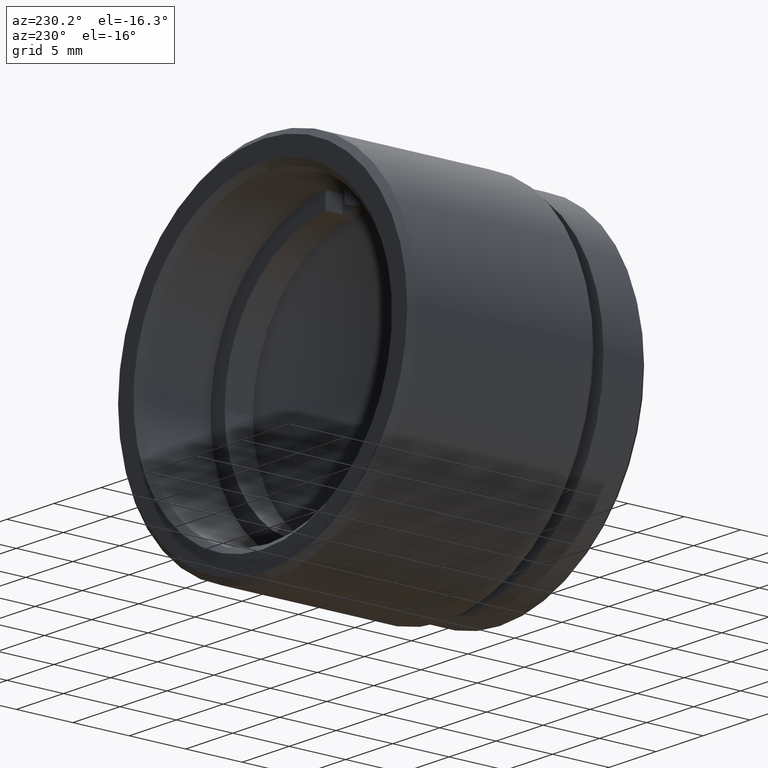
[diagram: clean part render]
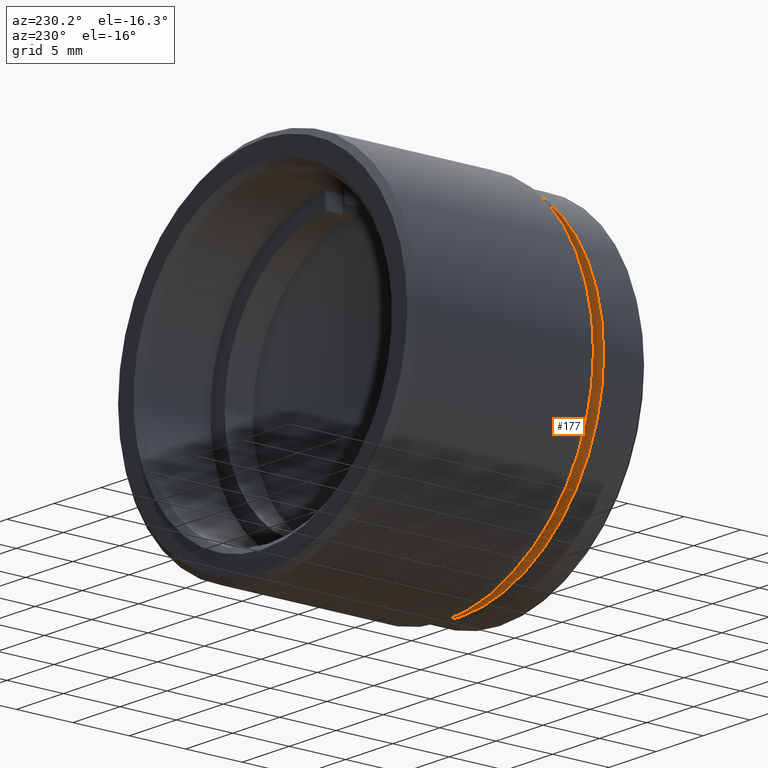
[diagram: same view with one face highlighted and labeled with its STEP entity id]
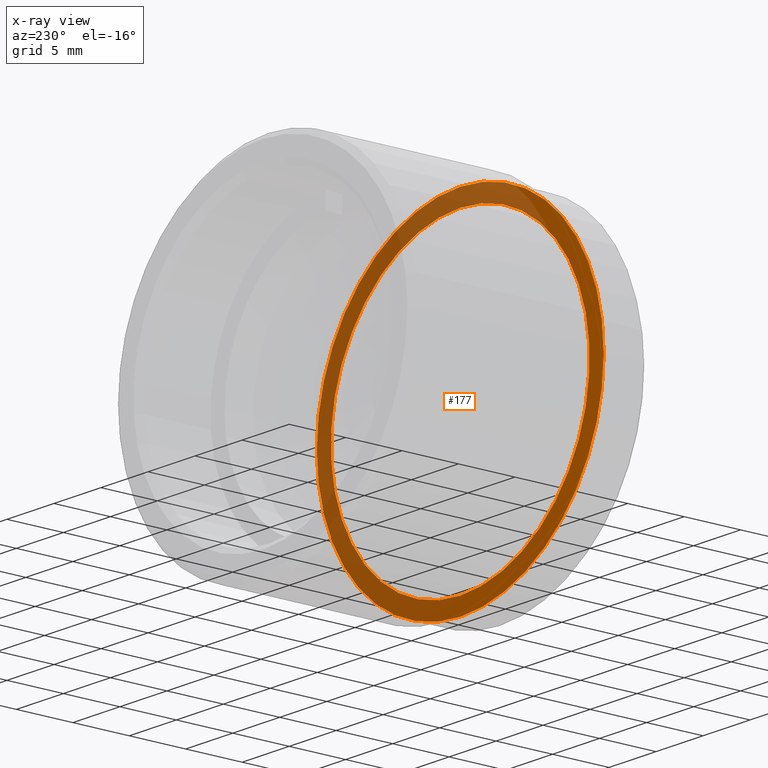
[diagram: x-ray of the same camera — body ghosted, the highlighted face saturated]
A machine part, auxiliary view. The second image highlights one B-rep face of the part: STEP entity #177.
The next image is the same camera in x-ray: the body ghosted, the highlighted face saturated — about 56% of this face is hidden behind the body in this view.
In plain terms, the highlighted planar face has unit normal (-0, 1, 0).
Its self-contained STEP definition (entity closure, byte-faithful):
#6 = EDGE_CURVE ( 'NONE', #1474, #1043, #1241, .T. ) ;
#11 = CARTESIAN_POINT ( 'NONE',  ( -62.96855859389908971, 8.153165921879420353, 19.92647029529256386 ) ) ;
#23 = DIRECTION ( 'NONE',  ( 0.000000000000000000, 0.000000000000000000, -1.000000000000000000 ) ) ;
#37 = FACE_OUTER_BOUND ( 'NONE', #210, .T. ) ;
#79 = DIRECTION ( 'NONE',  ( 0.000000000000000000, 0.000000000000000000, -1.000000000000000000 ) ) ;
#177 = ADVANCED_FACE ( 'NONE', ( #37, #378 ), #514, .T. ) ;
#210 = EDGE_LOOP ( 'NONE', ( #819, #899 ) ) ;
#232 = CARTESIAN_POINT ( 'NONE',  ( -62.96855859389908971, 8.153165921879420353, 19.92647029529256386 ) ) ;
#254 = DIRECTION ( 'NONE',  ( 0.000000000000000000, -1.000000000000000000, 0.000000000000000000 ) ) ;
#270 = CARTESIAN_POINT ( 'NONE',  ( -62.96855859389908971, 8.153165921879420353, 4.676470295292562973 ) ) ;
#278 = CIRCLE ( 'NONE', #420, 15.25000000000000000 ) ;
#307 = AXIS2_PLACEMENT_3D ( 'NONE', #387, #973, #1184 ) ;
#367 = EDGE_CURVE ( 'NONE', #802, #1295, #1364, .T. ) ;
#378 = FACE_BOUND ( 'NONE', #652, .T. ) ;
#387 = CARTESIAN_POINT ( 'NONE',  ( -47.71855859389908971, 8.153165921879420353, 19.92647029529256386 ) ) ;
#420 = AXIS2_PLACEMENT_3D ( 'NONE', #232, #254, #23 ) ;
#449 = CARTESIAN_POINT ( 'NONE',  ( -62.96855859389908971, 8.153165921879420353, 6.176470295292562973 ) ) ;
#514 = PLANE ( 'NONE',  #307 ) ;
#554 = CARTESIAN_POINT ( 'NONE',  ( -62.96855859389908971, 8.153165921879420353, 19.92647029529256386 ) ) ;
#624 = ORIENTED_EDGE ( 'NONE', *, *, #6, .T. ) ;
#652 = EDGE_LOOP ( 'NONE', ( #1000, #624 ) ) ;
#693 = DIRECTION ( 'NONE',  ( 0.000000000000000000, 0.000000000000000000, -1.000000000000000000 ) ) ;
#802 = VERTEX_POINT ( 'NONE', #270 ) ;
#809 = DIRECTION ( 'NONE',  ( 0.000000000000000000, 0.000000000000000000, -1.000000000000000000 ) ) ;
#813 = CARTESIAN_POINT ( 'NONE',  ( -62.96855859389908971, 8.153165921879420353, 33.67647029529256031 ) ) ;
#819 = ORIENTED_EDGE ( 'NONE', *, *, #367, .F. ) ;
#899 = ORIENTED_EDGE ( 'NONE', *, *, #1108, .F. ) ;
#902 = EDGE_CURVE ( 'NONE', #1043, #1474, #1464, .T. ) ;
#973 = DIRECTION ( 'NONE',  ( -0.000000000000000000, 1.000000000000000000, 0.000000000000000000 ) ) ;
#996 = AXIS2_PLACEMENT_3D ( 'NONE', #554, #1356, #79 ) ;
#1000 = ORIENTED_EDGE ( 'NONE', *, *, #902, .T. ) ;
#1043 = VERTEX_POINT ( 'NONE', #449 ) ;
#1060 = CARTESIAN_POINT ( 'NONE',  ( -62.96855859389908971, 8.153165921879420353, 19.92647029529256386 ) ) ;
#1108 = EDGE_CURVE ( 'NONE', #1295, #802, #278, .T. ) ;
#1149 = CARTESIAN_POINT ( 'NONE',  ( -62.96855859389908971, 8.153165921879420353, 35.17647029529256031 ) ) ;
#1176 = AXIS2_PLACEMENT_3D ( 'NONE', #1060, #1372, #809 ) ;
#1184 = DIRECTION ( 'NONE',  ( 1.000000000000000000, 0.000000000000000000, 0.000000000000000000 ) ) ;
#1241 = CIRCLE ( 'NONE', #1176, 13.75000000000000000 ) ;
#1275 = DIRECTION ( 'NONE',  ( 0.000000000000000000, -1.000000000000000000, 0.000000000000000000 ) ) ;
#1295 = VERTEX_POINT ( 'NONE', #1149 ) ;
#1356 = DIRECTION ( 'NONE',  ( 0.000000000000000000, -1.000000000000000000, 0.000000000000000000 ) ) ;
#1364 = CIRCLE ( 'NONE', #1487, 15.25000000000000000 ) ;
#1372 = DIRECTION ( 'NONE',  ( 0.000000000000000000, -1.000000000000000000, 0.000000000000000000 ) ) ;
#1464 = CIRCLE ( 'NONE', #996, 13.75000000000000000 ) ;
#1474 = VERTEX_POINT ( 'NONE', #813 ) ;
#1487 = AXIS2_PLACEMENT_3D ( 'NONE', #11, #1275, #693 ) ;